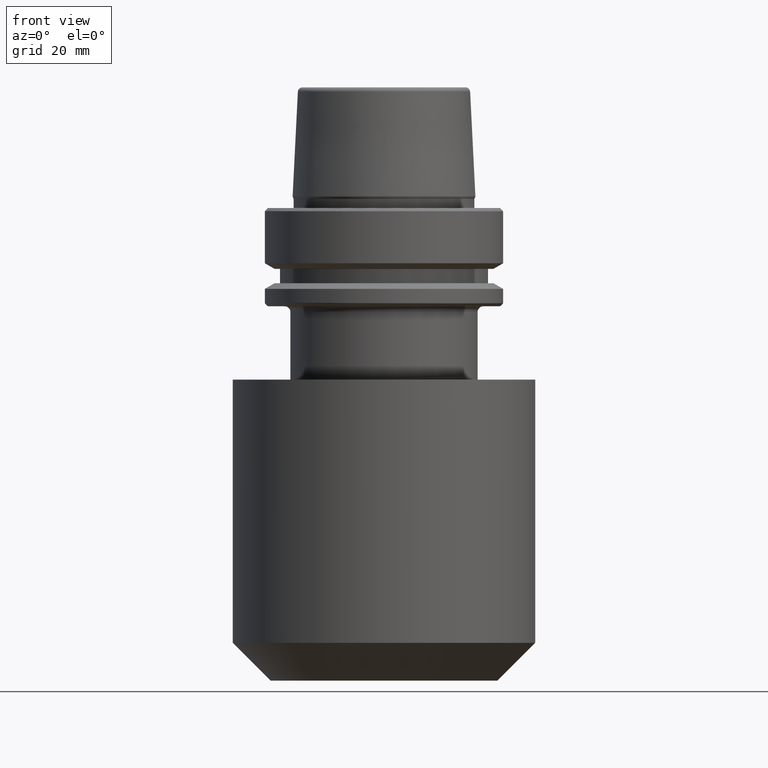
[diagram: clean part render]
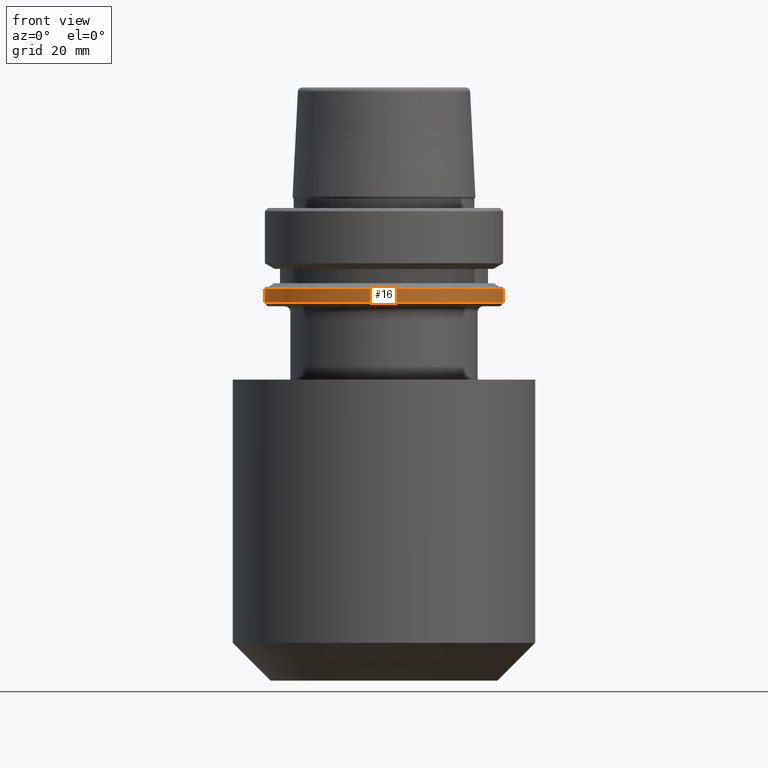
[diagram: same view with one face highlighted and labeled with its STEP entity id]
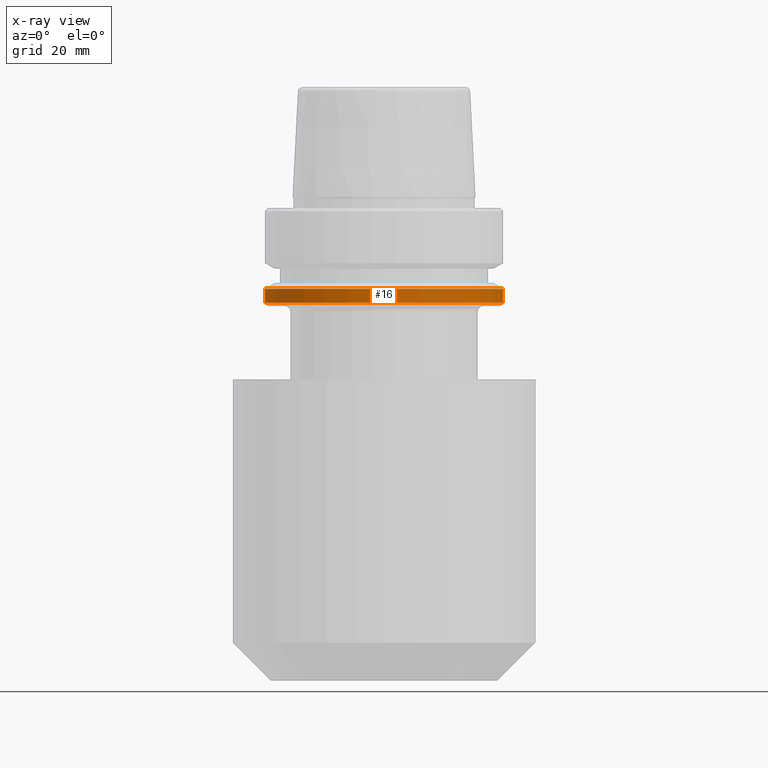
[diagram: x-ray of the same camera — body ghosted, the highlighted face saturated]
A machine part, front view. The second image highlights one B-rep face of the part: STEP entity #16.
The next image is the same camera in x-ray: the body ghosted, the highlighted face saturated — about 0% of this face is hidden behind the body in this view.
In plain terms, the highlighted cylindrical surface (partial cylindrical patch) has radius 31.5 mm, axis along (-0, -0, 1).
Its self-contained STEP definition (entity closure, byte-faithful):
#16 = ADVANCED_FACE ( 'NONE', ( #990 ), #495, .T. ) ;
#127 = VECTOR ( 'NONE', #803, 1000.000000000000000 ) ;
#252 = DIRECTION ( 'NONE',  ( -0.0000000000000000000, -0.0000000000000000000, 1.000000000000000000 ) ) ;
#255 = ORIENTED_EDGE ( 'NONE', *, *, #1240, .F. ) ;
#274 = VERTEX_POINT ( 'NONE', #750 ) ;
#281 = DIRECTION ( 'NONE',  ( -0.0000000000000000000, -0.0000000000000000000, 1.000000000000000000 ) ) ;
#306 = DIRECTION ( 'NONE',  ( 1.000000000000000000, 0.0000000000000000000, 0.0000000000000000000 ) ) ;
#309 = LINE ( 'NONE', #1307, #127 ) ;
#337 = DIRECTION ( 'NONE',  ( 1.000000000000000000, 0.0000000000000000000, 0.0000000000000000000 ) ) ;
#433 = DIRECTION ( 'NONE',  ( 1.000000000000000000, 0.0000000000000000000, 0.0000000000000000000 ) ) ;
#495 = CYLINDRICAL_SURFACE ( 'NONE', #958, 31.50000000000000000 ) ;
#511 = DIRECTION ( 'NONE',  ( -0.0000000000000000000, -0.0000000000000000000, 1.000000000000000000 ) ) ;
#521 = CARTESIAN_POINT ( 'NONE',  ( 0.0000000000000000000, 0.0000000000000000000, -21.37749907475931700 ) ) ;
#659 = CIRCLE ( 'NONE', #927, 31.50000000000000000 ) ;
#708 = EDGE_CURVE ( 'NONE', #880, #274, #309, .T. ) ;
#709 = ORIENTED_EDGE ( 'NONE', *, *, #1048, .T. ) ;
#750 = CARTESIAN_POINT ( 'NONE',  ( -31.50000000000000000, 3.857637417314162700E-015, -21.37749907475931700 ) ) ;
#783 = EDGE_LOOP ( 'NONE', ( #847, #709, #991, #255 ) ) ;
#803 = DIRECTION ( 'NONE',  ( -0.0000000000000000000, -0.0000000000000000000, 1.000000000000000000 ) ) ;
#814 = VERTEX_POINT ( 'NONE', #1018 ) ;
#847 = ORIENTED_EDGE ( 'NONE', *, *, #708, .F. ) ;
#872 = CIRCLE ( 'NONE', #894, 31.50000000000000000 ) ;
#880 = VERTEX_POINT ( 'NONE', #1284 ) ;
#894 = AXIS2_PLACEMENT_3D ( 'NONE', #521, #1260, #306 ) ;
#911 = EDGE_CURVE ( 'NONE', #814, #1071, #972, .T. ) ;
#912 = CARTESIAN_POINT ( 'NONE',  ( 0.0000000000000000000, 0.0000000000000000000, -25.03431457505077200 ) ) ;
#927 = AXIS2_PLACEMENT_3D ( 'NONE', #912, #281, #433 ) ;
#958 = AXIS2_PLACEMENT_3D ( 'NONE', #962, #252, #337 ) ;
#962 = CARTESIAN_POINT ( 'NONE',  ( 0.0000000000000000000, 0.0000000000000000000, 78.96908074195309300 ) ) ;
#972 = LINE ( 'NONE', #1334, #1035 ) ;
#990 = FACE_OUTER_BOUND ( 'NONE', #783, .T. ) ;
#991 = ORIENTED_EDGE ( 'NONE', *, *, #911, .T. ) ;
#1018 = CARTESIAN_POINT ( 'NONE',  ( 31.50000000000000000, 0.0000000000000000000, -25.03431457505077200 ) ) ;
#1035 = VECTOR ( 'NONE', #511, 1000.000000000000000 ) ;
#1048 = EDGE_CURVE ( 'NONE', #880, #814, #659, .T. ) ;
#1071 = VERTEX_POINT ( 'NONE', #1222 ) ;
#1222 = CARTESIAN_POINT ( 'NONE',  ( 31.50000000000000000, 0.0000000000000000000, -21.37749907475931700 ) ) ;
#1240 = EDGE_CURVE ( 'NONE', #274, #1071, #872, .T. ) ;
#1260 = DIRECTION ( 'NONE',  ( -0.0000000000000000000, -0.0000000000000000000, 1.000000000000000000 ) ) ;
#1284 = CARTESIAN_POINT ( 'NONE',  ( -31.50000000000000000, 3.857637417314161900E-015, -25.03431457505077200 ) ) ;
#1307 = CARTESIAN_POINT ( 'NONE',  ( -31.50000000000000000, 3.857637417314162700E-015, 78.96908074195309300 ) ) ;
#1334 = CARTESIAN_POINT ( 'NONE',  ( 31.50000000000000000, 0.0000000000000000000, 78.96908074195309300 ) ) ;